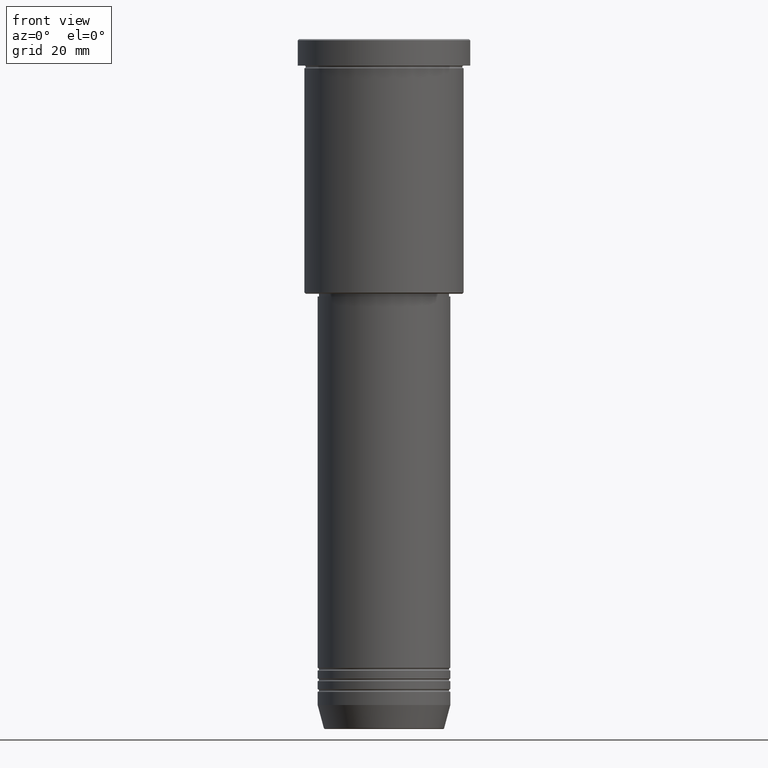
[diagram: clean part render]
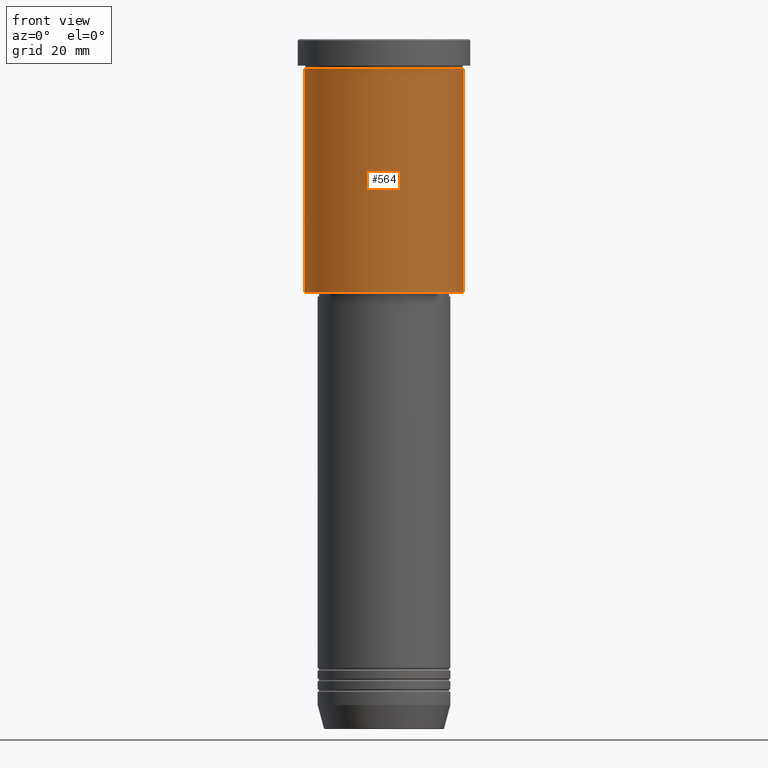
[diagram: same view with one face highlighted and labeled with its STEP entity id]
A machine part, front view. The second image highlights one B-rep face of the part: STEP entity #564.
In plain terms, the highlighted cylindrical surface (partial cylindrical patch) has radius 30 mm, axis along (-0, -0, 1).
Its self-contained STEP definition (entity closure, byte-faithful):
#17 = ORIENTED_EDGE ( 'NONE', *, *, #1093, .T. ) ;
#30 = CARTESIAN_POINT ( 'NONE',  ( 30.00000000000000000, 0.000000000000000000, 0.000000000000000000 ) ) ;
#55 = ORIENTED_EDGE ( 'NONE', *, *, #438, .F. ) ;
#57 = CARTESIAN_POINT ( 'NONE',  ( -30.00000000000000000, 3.673940397442059178E-15, -10.99999999999999289 ) ) ;
#60 = EDGE_CURVE ( 'NONE', #612, #681, #371, .T. ) ;
#64 = EDGE_CURVE ( 'NONE', #612, #518, #424, .T. ) ;
#139 = DIRECTION ( 'NONE',  ( -0.000000000000000000, -0.000000000000000000, 1.000000000000000000 ) ) ;
#158 = EDGE_LOOP ( 'NONE', ( #449, #539, #17, #55 ) ) ;
#183 = CARTESIAN_POINT ( 'NONE',  ( 0.000000000000000000, 0.000000000000000000, -10.99999999999999289 ) ) ;
#226 = CYLINDRICAL_SURFACE ( 'NONE', #922, 30.00000000000000000 ) ;
#278 = DIRECTION ( 'NONE',  ( -0.000000000000000000, -0.000000000000000000, 1.000000000000000000 ) ) ;
#307 = DIRECTION ( 'NONE',  ( 1.000000000000000000, 0.000000000000000000, 0.000000000000000000 ) ) ;
#313 = CARTESIAN_POINT ( 'NONE',  ( -30.00000000000000000, 3.673940397442059178E-15, -95.50000000000002842 ) ) ;
#366 = AXIS2_PLACEMENT_3D ( 'NONE', #1101, #278, #654 ) ;
#371 = LINE ( 'NONE', #841, #942 ) ;
#383 = DIRECTION ( 'NONE',  ( 1.000000000000000000, 0.000000000000000000, 0.000000000000000000 ) ) ;
#398 = CARTESIAN_POINT ( 'NONE',  ( 30.00000000000000000, 0.000000000000000000, -95.50000000000002842 ) ) ;
#424 = CIRCLE ( 'NONE', #366, 30.00000000000000000 ) ;
#438 = EDGE_CURVE ( 'NONE', #681, #975, #574, .T. ) ;
#449 = ORIENTED_EDGE ( 'NONE', *, *, #60, .F. ) ;
#518 = VERTEX_POINT ( 'NONE', #398 ) ;
#539 = ORIENTED_EDGE ( 'NONE', *, *, #64, .T. ) ;
#564 = ADVANCED_FACE ( 'NONE', ( #963 ), #226, .T. ) ;
#574 = CIRCLE ( 'NONE', #792, 30.00000000000000000 ) ;
#612 = VERTEX_POINT ( 'NONE', #313 ) ;
#648 = DIRECTION ( 'NONE',  ( -0.000000000000000000, -0.000000000000000000, 1.000000000000000000 ) ) ;
#654 = DIRECTION ( 'NONE',  ( -1.000000000000000000, 0.000000000000000000, 0.000000000000000000 ) ) ;
#681 = VERTEX_POINT ( 'NONE', #57 ) ;
#761 = CARTESIAN_POINT ( 'NONE',  ( 30.00000000000000000, 0.000000000000000000, -10.99999999999999289 ) ) ;
#776 = CARTESIAN_POINT ( 'NONE',  ( 0.000000000000000000, 0.000000000000000000, 0.000000000000000000 ) ) ;
#788 = DIRECTION ( 'NONE',  ( -0.000000000000000000, -0.000000000000000000, 1.000000000000000000 ) ) ;
#792 = AXIS2_PLACEMENT_3D ( 'NONE', #183, #1121, #383 ) ;
#841 = CARTESIAN_POINT ( 'NONE',  ( -30.00000000000000000, 3.673940397442059178E-15, 0.000000000000000000 ) ) ;
#922 = AXIS2_PLACEMENT_3D ( 'NONE', #776, #788, #307 ) ;
#942 = VECTOR ( 'NONE', #648, 1000.000000000000000 ) ;
#963 = FACE_OUTER_BOUND ( 'NONE', #158, .T. ) ;
#975 = VERTEX_POINT ( 'NONE', #761 ) ;
#1093 = EDGE_CURVE ( 'NONE', #518, #975, #1131, .T. ) ;
#1101 = CARTESIAN_POINT ( 'NONE',  ( 0.000000000000000000, 0.000000000000000000, -95.50000000000002842 ) ) ;
#1121 = DIRECTION ( 'NONE',  ( -0.000000000000000000, -0.000000000000000000, 1.000000000000000000 ) ) ;
#1127 = VECTOR ( 'NONE', #139, 1000.000000000000000 ) ;
#1131 = LINE ( 'NONE', #30, #1127 ) ;